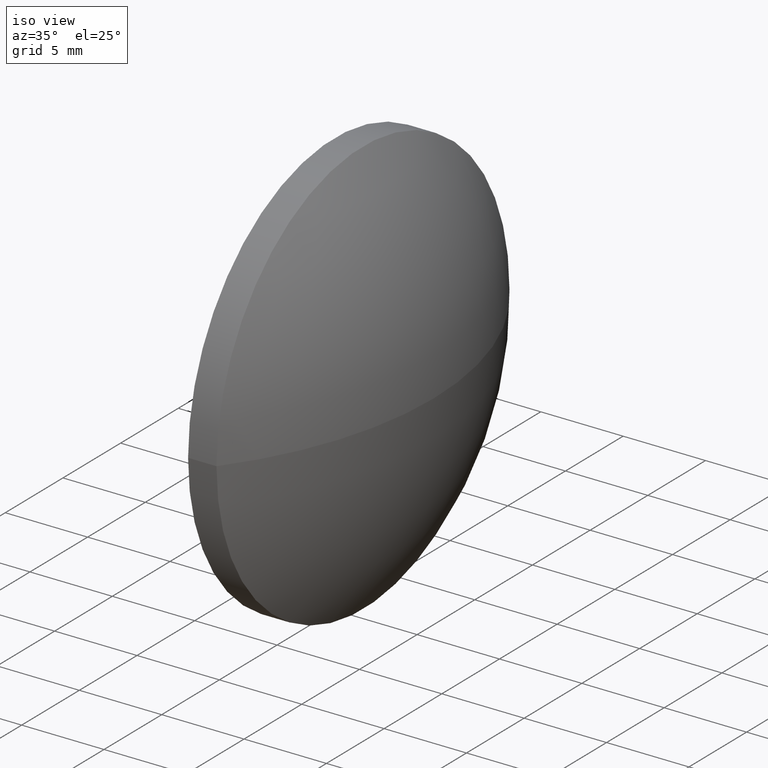
[diagram: clean part render]
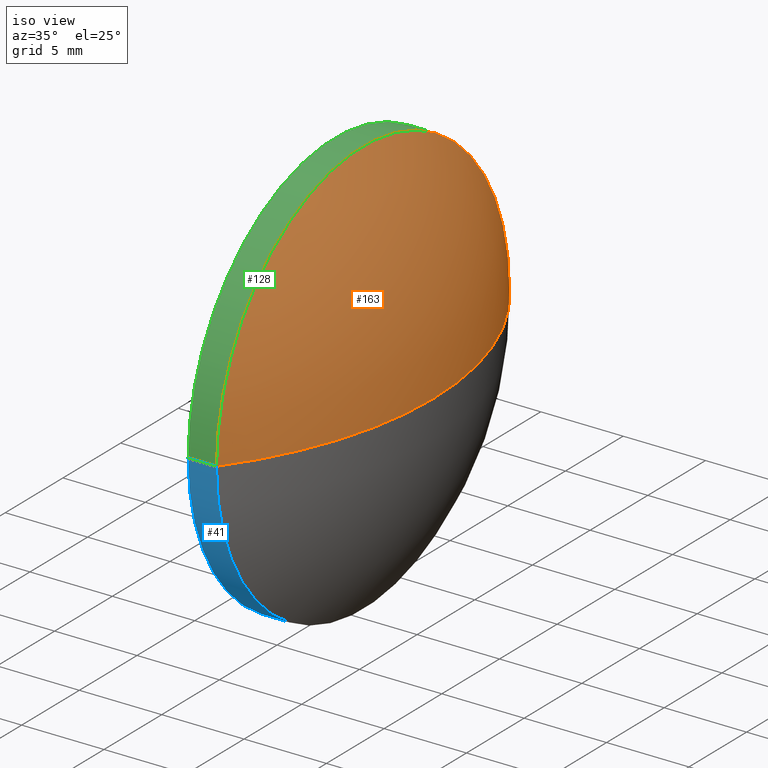
[diagram: same view with three faces highlighted in distinct colors, each labeled with its STEP entity id]
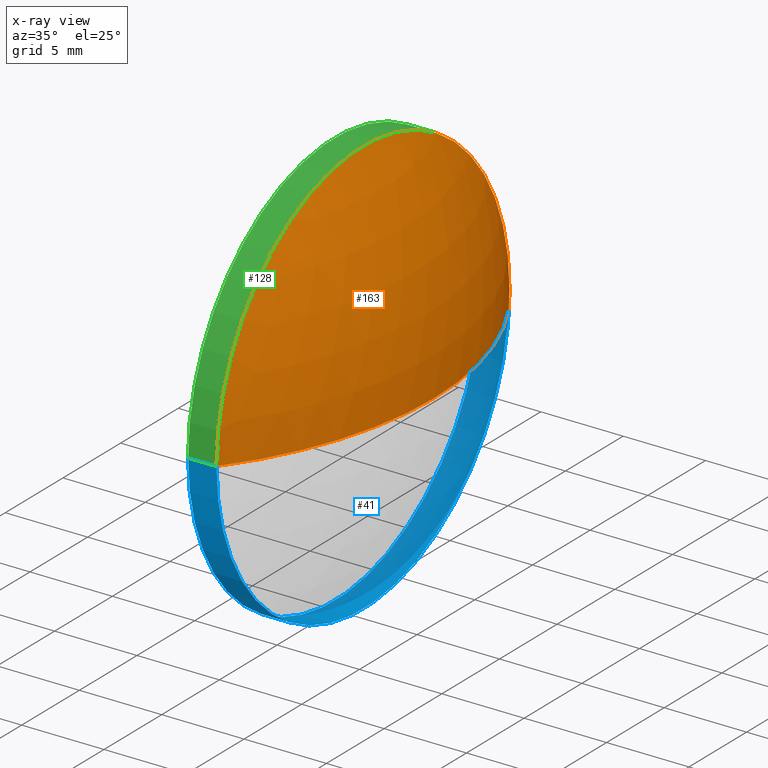
[diagram: x-ray of the same camera — body ghosted, the three highlighted faces saturated]
A machine part, iso view with three faces highlighted in distinct colors.
The next image is the same camera in x-ray (body ghosted, the three faces saturated) — at least one of them is partly hidden behind the body in this view.
Their STEP definitions:

[orange] entity #163 — the highlighted spherical surface has radius 20.9918 mm.
#4 = CIRCLE ( 'NONE', #156, 20.99175099999987637 ) ;
#7 = DIRECTION ( 'NONE',  ( 0.000000000000000000, 1.000000000000000000, 1.224646799147353207E-16 ) ) ;
#16 = VERTEX_POINT ( 'NONE', #42 ) ;
#19 = DIRECTION ( 'NONE',  ( -1.000000000000000000, 1.322213454972335606E-14, -0.000000000000000000 ) ) ;
#24 = ORIENTED_EDGE ( 'NONE', *, *, #110, .F. ) ;
#25 = VERTEX_POINT ( 'NONE', #135 ) ;
#28 = CARTESIAN_POINT ( 'NONE',  ( 16.71417388360379164, 12.70000005648239139, 0.000000000000000000 ) ) ;
#36 = CIRCLE ( 'NONE', #89, 20.99175099999987637 ) ;
#42 = CARTESIAN_POINT ( 'NONE',  ( 20.99175099999987637, -2.762703821227557815E-13, 0.000000000000000000 ) ) ;
#51 = ORIENTED_EDGE ( 'NONE', *, *, #104, .T. ) ;
#55 = DIRECTION ( 'NONE',  ( 0.000000000000000000, 0.000000000000000000, 1.000000000000000000 ) ) ;
#61 = DIRECTION ( 'NONE',  ( 1.619244475421433971E-30, 1.224646799147353207E-16, -1.000000000000000000 ) ) ;
#68 = CIRCLE ( 'NONE', #84, 12.70000005648261165 ) ;
#71 = CARTESIAN_POINT ( 'NONE',  ( 0.000000000000000000, 0.000000000000000000, 0.000000000000000000 ) ) ;
#74 = AXIS2_PLACEMENT_3D ( 'NONE', #96, #150, #109 ) ;
#84 = AXIS2_PLACEMENT_3D ( 'NONE', #164, #19, #137 ) ;
#89 = AXIS2_PLACEMENT_3D ( 'NONE', #161, #61, #7 ) ;
#91 = DIRECTION ( 'NONE',  ( 1.000000000000000000, 0.000000000000000000, 0.000000000000000000 ) ) ;
#94 = FACE_OUTER_BOUND ( 'NONE', #160, .T. ) ;
#96 = CARTESIAN_POINT ( 'NONE',  ( 0.000000000000000000, 0.000000000000000000, 0.000000000000000000 ) ) ;
#104 = EDGE_CURVE ( 'NONE', #16, #105, #4, .T. ) ;
#105 = VERTEX_POINT ( 'NONE', #28 ) ;
#109 = DIRECTION ( 'NONE',  ( 1.322213454972335606E-14, 1.000000000000000000, 0.000000000000000000 ) ) ;
#110 = EDGE_CURVE ( 'NONE', #25, #105, #68, .T. ) ;
#135 = CARTESIAN_POINT ( 'NONE',  ( 16.71417388360346123, -12.70000005648283370, -1.555301441834263505E-15 ) ) ;
#137 = DIRECTION ( 'NONE',  ( -1.311287031126963176E-14, -1.000000000000000000, 0.000000000000000000 ) ) ;
#138 = SPHERICAL_SURFACE ( 'NONE', #74, 20.99175099999987637 ) ;
#150 = DIRECTION ( 'NONE',  ( 0.000000000000000000, 0.000000000000000000, -1.000000000000000000 ) ) ;
#151 = EDGE_CURVE ( 'NONE', #16, #25, #36, .T. ) ;
#156 = AXIS2_PLACEMENT_3D ( 'NONE', #71, #55, #91 ) ;
#159 = ORIENTED_EDGE ( 'NONE', *, *, #151, .F. ) ;
#160 = EDGE_LOOP ( 'NONE', ( #159, #51, #24 ) ) ;
#161 = CARTESIAN_POINT ( 'NONE',  ( 0.000000000000000000, 0.000000000000000000, 0.000000000000000000 ) ) ;
#163 = ADVANCED_FACE ( 'NONE', ( #94 ), #138, .T. ) ;
#164 = CARTESIAN_POINT ( 'NONE',  ( 16.71417388360362821, -2.209970559764793155E-13, 0.000000000000000000 ) ) ;

[blue] entity #41 — the highlighted cylindrical surface (partial cylindrical patch) has radius 12.7 mm, axis along (-1, 0, -0).
#2 = ORIENTED_EDGE ( 'NONE', *, *, #66, .T. ) ;
#11 = CARTESIAN_POINT ( 'NONE',  ( 14.99175100000010197, 12.70000005648238961, 1.555301441834262913E-15 ) ) ;
#17 = CARTESIAN_POINT ( 'NONE',  ( 14.99175099999976446, -12.70000005648278751, 0.000000000000000000 ) ) ;
#22 = DIRECTION ( 'NONE',  ( -1.000000000000000000, 1.322213454972335606E-14, -0.000000000000000000 ) ) ;
#23 = VECTOR ( 'NONE', #149, 1000.000000000000000 ) ;
#25 = VERTEX_POINT ( 'NONE', #135 ) ;
#28 = CARTESIAN_POINT ( 'NONE',  ( 16.71417388360379164, 12.70000005648239139, 0.000000000000000000 ) ) ;
#37 = ORIENTED_EDGE ( 'NONE', *, *, #166, .T. ) ;
#40 = VECTOR ( 'NONE', #58, 1000.000000000000000 ) ;
#41 = ADVANCED_FACE ( 'NONE', ( #157 ), #117, .T. ) ;
#44 = CARTESIAN_POINT ( 'NONE',  ( 1.679211095283071421E-13, 12.70000005648259922, 1.555301441834262125E-15 ) ) ;
#45 = AXIS2_PLACEMENT_3D ( 'NONE', #162, #22, #49 ) ;
#46 = DIRECTION ( 'NONE',  ( -1.000000000000000000, 1.322213454972335606E-14, -0.000000000000000000 ) ) ;
#49 = DIRECTION ( 'NONE',  ( -1.324946271034538149E-14, -1.000000000000000000, 0.000000000000000000 ) ) ;
#58 = DIRECTION ( 'NONE',  ( -1.000000000000000000, 1.322213454972335606E-14, -0.000000000000000000 ) ) ;
#59 = LINE ( 'NONE', #44, #40 ) ;
#66 = EDGE_CURVE ( 'NONE', #25, #76, #158, .T. ) ;
#76 = VERTEX_POINT ( 'NONE', #17 ) ;
#77 = ORIENTED_EDGE ( 'NONE', *, *, #116, .F. ) ;
#79 = CARTESIAN_POINT ( 'NONE',  ( -1.679211095283071421E-13, -12.70000005648259922, 0.000000000000000000 ) ) ;
#85 = CARTESIAN_POINT ( 'NONE',  ( 16.71417388360362821, -2.209970559764793155E-13, 0.000000000000000000 ) ) ;
#93 = CARTESIAN_POINT ( 'NONE',  ( 0.000000000000000000, 0.000000000000000000, 0.000000000000000000 ) ) ;
#101 = CIRCLE ( 'NONE', #45, 12.70000005648258856 ) ;
#105 = VERTEX_POINT ( 'NONE', #28 ) ;
#108 = DIRECTION ( 'NONE',  ( -1.311287031126963176E-14, -1.000000000000000000, 0.000000000000000000 ) ) ;
#116 = EDGE_CURVE ( 'NONE', #124, #76, #101, .T. ) ;
#117 = CYLINDRICAL_SURFACE ( 'NONE', #131, 12.70000005648259922 ) ;
#119 = DIRECTION ( 'NONE',  ( -1.322213454972335606E-14, -1.000000000000000000, 0.000000000000000000 ) ) ;
#124 = VERTEX_POINT ( 'NONE', #11 ) ;
#126 = ORIENTED_EDGE ( 'NONE', *, *, #144, .F. ) ;
#129 = AXIS2_PLACEMENT_3D ( 'NONE', #85, #46, #108 ) ;
#131 = AXIS2_PLACEMENT_3D ( 'NONE', #93, #133, #119 ) ;
#133 = DIRECTION ( 'NONE',  ( -1.000000000000000000, 1.322213454972335606E-14, -0.000000000000000000 ) ) ;
#135 = CARTESIAN_POINT ( 'NONE',  ( 16.71417388360346123, -12.70000005648283370, -1.555301441834263505E-15 ) ) ;
#140 = EDGE_LOOP ( 'NONE', ( #126, #37, #2, #77 ) ) ;
#141 = CIRCLE ( 'NONE', #129, 12.70000005648261165 ) ;
#144 = EDGE_CURVE ( 'NONE', #105, #124, #59, .T. ) ;
#149 = DIRECTION ( 'NONE',  ( -1.000000000000000000, 1.322213454972335606E-14, -0.000000000000000000 ) ) ;
#157 = FACE_OUTER_BOUND ( 'NONE', #140, .T. ) ;
#158 = LINE ( 'NONE', #79, #23 ) ;
#162 = CARTESIAN_POINT ( 'NONE',  ( 14.99175099999993321, -1.982229488579487999E-13, 0.000000000000000000 ) ) ;
#166 = EDGE_CURVE ( 'NONE', #105, #25, #141, .T. ) ;

[green] entity #128 — the highlighted cylindrical surface (partial cylindrical patch) has radius 12.7 mm, axis along (-1, 0, -0).
#9 = CYLINDRICAL_SURFACE ( 'NONE', #122, 12.70000005648259922 ) ;
#11 = CARTESIAN_POINT ( 'NONE',  ( 14.99175100000010197, 12.70000005648238961, 1.555301441834262913E-15 ) ) ;
#15 = DIRECTION ( 'NONE',  ( -1.000000000000000000, 1.322213454972335606E-14, -0.000000000000000000 ) ) ;
#17 = CARTESIAN_POINT ( 'NONE',  ( 14.99175099999976446, -12.70000005648278751, 0.000000000000000000 ) ) ;
#19 = DIRECTION ( 'NONE',  ( -1.000000000000000000, 1.322213454972335606E-14, -0.000000000000000000 ) ) ;
#21 = DIRECTION ( 'NONE',  ( -1.000000000000000000, 1.322213454972335606E-14, -0.000000000000000000 ) ) ;
#23 = VECTOR ( 'NONE', #149, 1000.000000000000000 ) ;
#25 = VERTEX_POINT ( 'NONE', #135 ) ;
#26 = ORIENTED_EDGE ( 'NONE', *, *, #144, .T. ) ;
#28 = CARTESIAN_POINT ( 'NONE',  ( 16.71417388360379164, 12.70000005648239139, 0.000000000000000000 ) ) ;
#40 = VECTOR ( 'NONE', #58, 1000.000000000000000 ) ;
#44 = CARTESIAN_POINT ( 'NONE',  ( 1.679211095283071421E-13, 12.70000005648259922, 1.555301441834262125E-15 ) ) ;
#58 = DIRECTION ( 'NONE',  ( -1.000000000000000000, 1.322213454972335606E-14, -0.000000000000000000 ) ) ;
#59 = LINE ( 'NONE', #44, #40 ) ;
#63 = CARTESIAN_POINT ( 'NONE',  ( 0.000000000000000000, 0.000000000000000000, 0.000000000000000000 ) ) ;
#66 = EDGE_CURVE ( 'NONE', #25, #76, #158, .T. ) ;
#68 = CIRCLE ( 'NONE', #84, 12.70000005648261165 ) ;
#69 = DIRECTION ( 'NONE',  ( -1.324946271034538149E-14, -1.000000000000000000, 0.000000000000000000 ) ) ;
#70 = ORIENTED_EDGE ( 'NONE', *, *, #110, .T. ) ;
#76 = VERTEX_POINT ( 'NONE', #17 ) ;
#79 = CARTESIAN_POINT ( 'NONE',  ( -1.679211095283071421E-13, -12.70000005648259922, 0.000000000000000000 ) ) ;
#84 = AXIS2_PLACEMENT_3D ( 'NONE', #164, #19, #137 ) ;
#86 = DIRECTION ( 'NONE',  ( -1.322213454972335606E-14, -1.000000000000000000, 0.000000000000000000 ) ) ;
#90 = EDGE_LOOP ( 'NONE', ( #70, #26, #112, #130 ) ) ;
#100 = EDGE_CURVE ( 'NONE', #76, #124, #115, .T. ) ;
#105 = VERTEX_POINT ( 'NONE', #28 ) ;
#110 = EDGE_CURVE ( 'NONE', #25, #105, #68, .T. ) ;
#112 = ORIENTED_EDGE ( 'NONE', *, *, #100, .F. ) ;
#115 = CIRCLE ( 'NONE', #147, 12.70000005648258856 ) ;
#121 = FACE_OUTER_BOUND ( 'NONE', #90, .T. ) ;
#122 = AXIS2_PLACEMENT_3D ( 'NONE', #63, #21, #86 ) ;
#124 = VERTEX_POINT ( 'NONE', #11 ) ;
#128 = ADVANCED_FACE ( 'NONE', ( #121 ), #9, .T. ) ;
#130 = ORIENTED_EDGE ( 'NONE', *, *, #66, .F. ) ;
#132 = CARTESIAN_POINT ( 'NONE',  ( 14.99175099999993321, -1.982229488579487999E-13, 0.000000000000000000 ) ) ;
#135 = CARTESIAN_POINT ( 'NONE',  ( 16.71417388360346123, -12.70000005648283370, -1.555301441834263505E-15 ) ) ;
#137 = DIRECTION ( 'NONE',  ( -1.311287031126963176E-14, -1.000000000000000000, 0.000000000000000000 ) ) ;
#144 = EDGE_CURVE ( 'NONE', #105, #124, #59, .T. ) ;
#147 = AXIS2_PLACEMENT_3D ( 'NONE', #132, #15, #69 ) ;
#149 = DIRECTION ( 'NONE',  ( -1.000000000000000000, 1.322213454972335606E-14, -0.000000000000000000 ) ) ;
#158 = LINE ( 'NONE', #79, #23 ) ;
#164 = CARTESIAN_POINT ( 'NONE',  ( 16.71417388360362821, -2.209970559764793155E-13, 0.000000000000000000 ) ) ;